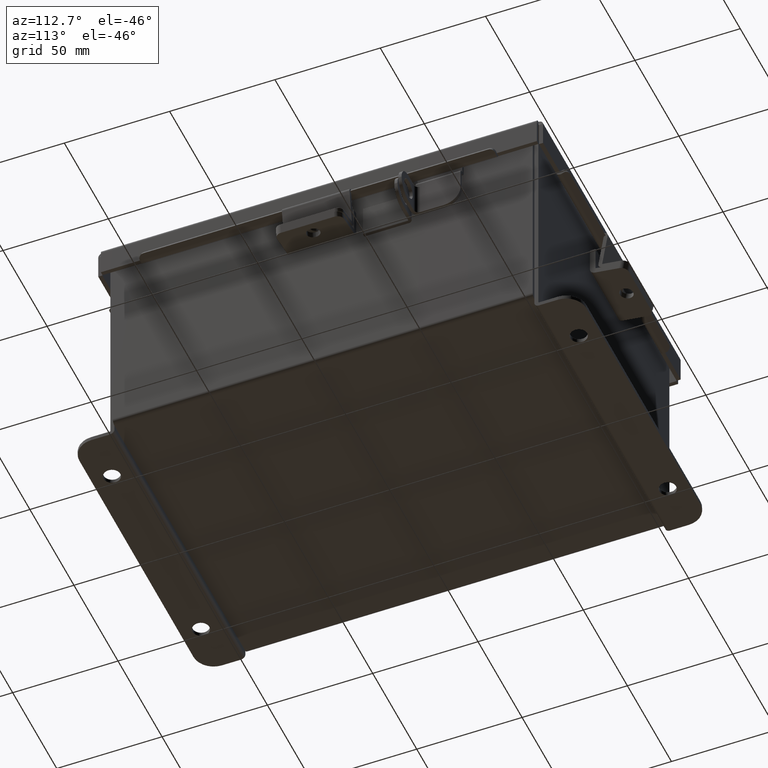
[diagram: clean part render]
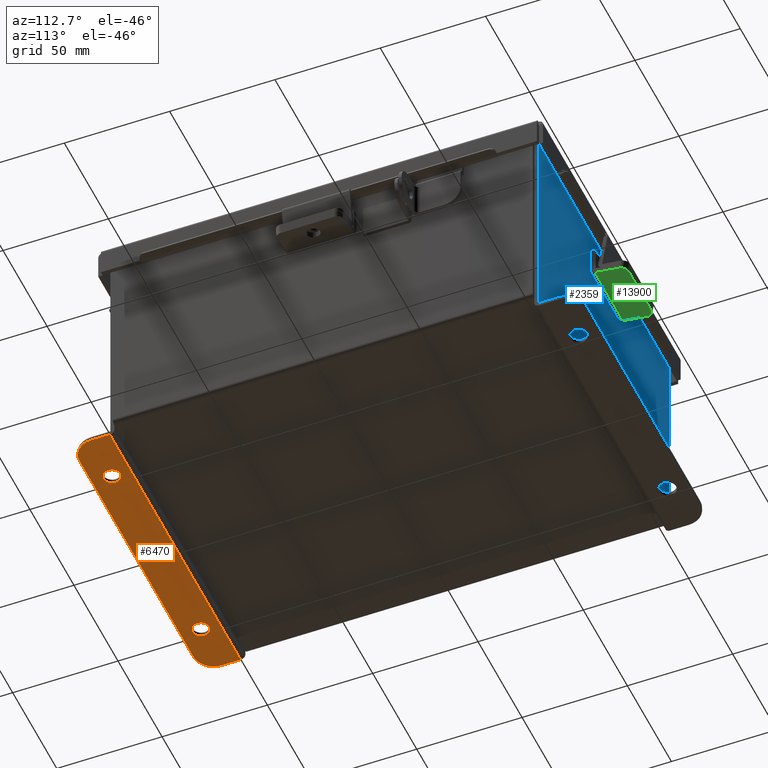
[diagram: same view with three faces highlighted in distinct colors, each labeled with its STEP entity id]
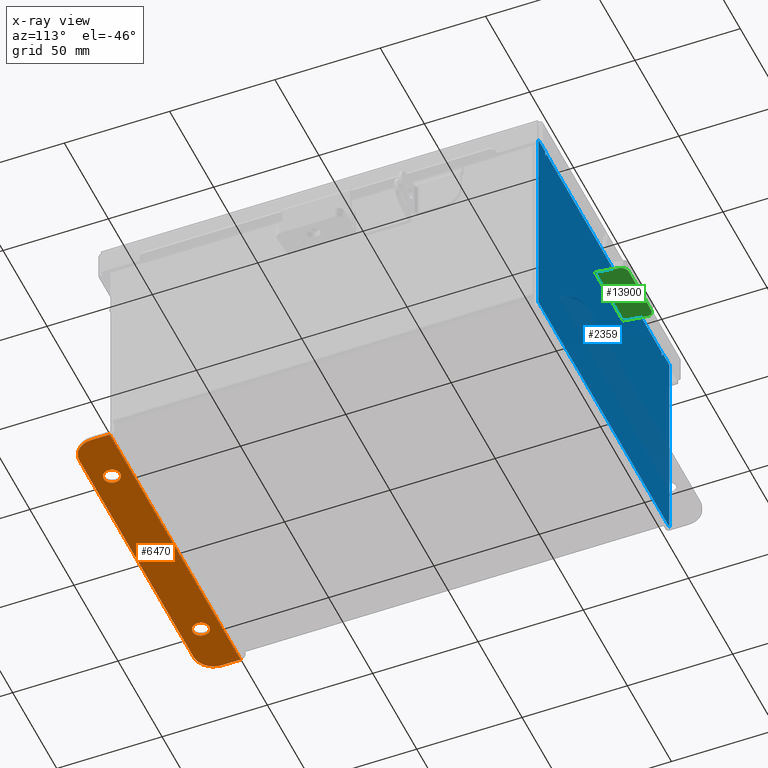
[diagram: x-ray of the same camera — body ghosted, the three highlighted faces saturated]
A machine part, auxiliary view with three faces highlighted in distinct colors.
The next image is the same camera in x-ray (body ghosted, the three faces saturated) — at least one of them is partly hidden behind the body in this view.
Their STEP definitions:

[orange] entity #6470 — the highlighted planar face has unit normal (0, -0, 1).
#15 = VERTEX_POINT ( 'NONE', #13434 ) ;
#88 = FACE_OUTER_BOUND ( 'NONE', #2452, .T. ) ;
#222 = DIRECTION ( 'NONE',  ( 3.994427860841574400E-031, 1.000000000000000000, -3.332425039709726500E-015 ) ) ;
#336 = ORIENTED_EDGE ( 'NONE', *, *, #5628, .T. ) ;
#584 = VERTEX_POINT ( 'NONE', #10050 ) ;
#651 = CIRCLE ( 'NONE', #1889, 0.3750000000000000600 ) ;
#751 = DIRECTION ( 'NONE',  ( 0.0000000000000000000, -3.362274453740631800E-015, -1.000000000000000000 ) ) ;
#816 = ORIENTED_EDGE ( 'NONE', *, *, #12604, .F. ) ;
#1041 = CARTESIAN_POINT ( 'NONE',  ( -2.925299999999996500, -6.556435184794231700E-015, -2.186999999999998900 ) ) ;
#1432 = CARTESIAN_POINT ( 'NONE',  ( 2.925300000000004000, 0.01300000000000393200, -2.186999999999998900 ) ) ;
#1616 = LINE ( 'NONE', #1041, #7528 ) ;
#1710 = DIRECTION ( 'NONE',  ( 0.0000000000000000000, -3.362274453740631800E-015, -1.000000000000000000 ) ) ;
#1760 = VERTEX_POINT ( 'NONE', #11799 ) ;
#1889 = AXIS2_PLACEMENT_3D ( 'NONE', #10932, #3807, #12134 ) ;
#1937 = ORIENTED_EDGE ( 'NONE', *, *, #5139, .T. ) ;
#2050 = CARTESIAN_POINT ( 'NONE',  ( 0.0000000000000000000, 0.7378000000000043400, -2.187000000000001600 ) ) ;
#2198 = CARTESIAN_POINT ( 'NONE',  ( 2.925300000000004000, -2.185478394931410600E-015, -2.186999999999998900 ) ) ;
#2246 = DIRECTION ( 'NONE',  ( -3.994427860841574400E-031, -1.000000000000000000, 3.332425039709726500E-015 ) ) ;
#2333 = CIRCLE ( 'NONE', #8039, 0.3750000000000000600 ) ;
#2452 = EDGE_LOOP ( 'NONE', ( #4488, #1937, #6517, #336, #7218, #816 ) ) ;
#2558 = CARTESIAN_POINT ( 'NONE',  ( -2.925299999999996500, 0.3628000000000002900, -2.187000000000000300 ) ) ;
#2651 = VERTEX_POINT ( 'NONE', #9995 ) ;
#2955 = CARTESIAN_POINT ( 'NONE',  ( -2.925299999999995600, 0.01300000000000065300, -2.186999999999998900 ) ) ;
#3237 = DIRECTION ( 'NONE',  ( 1.000000000000000000, 4.910036603141682400E-031, 0.0000000000000000000 ) ) ;
#3435 = EDGE_CURVE ( 'NONE', #5830, #4857, #1616, .T. ) ;
#3807 = DIRECTION ( 'NONE',  ( -0.0000000000000000000, -3.332425039709726500E-015, -1.000000000000000000 ) ) ;
#4251 = DIRECTION ( 'NONE',  ( -0.0000000000000000000, -3.332425039709726500E-015, -1.000000000000000000 ) ) ;
#4398 = EDGE_CURVE ( 'NONE', #2651, #10884, #14421, .T. ) ;
#4488 = ORIENTED_EDGE ( 'NONE', *, *, #3435, .T. ) ;
#4528 = VERTEX_POINT ( 'NONE', #12915 ) ;
#4546 = ORIENTED_EDGE ( 'NONE', *, *, #4398, .F. ) ;
#4857 = VERTEX_POINT ( 'NONE', #2558 ) ;
#4929 = AXIS2_PLACEMENT_3D ( 'NONE', #12796, #13994, #6853 ) ;
#4945 = ORIENTED_EDGE ( 'NONE', *, *, #9046, .F. ) ;
#5139 = EDGE_CURVE ( 'NONE', #4857, #4528, #2333, .T. ) ;
#5155 = EDGE_CURVE ( 'NONE', #15, #584, #14575, .T. ) ;
#5482 = CIRCLE ( 'NONE', #7900, 0.1560000000000001900 ) ;
#5628 = EDGE_CURVE ( 'NONE', #12207, #1760, #651, .T. ) ;
#5745 = CARTESIAN_POINT ( 'NONE',  ( 2.925300000000004000, 0.01300000000000502500, -2.186999999999998900 ) ) ;
#5830 = VERTEX_POINT ( 'NONE', #2955 ) ;
#6004 = FACE_BOUND ( 'NONE', #6626, .T. ) ;
#6141 = CARTESIAN_POINT ( 'NONE',  ( -1.987800000000000000, 0.3628000000000002900, -2.186999999999999800 ) ) ;
#6470 = ADVANCED_FACE ( 'NONE', ( #9181, #6004, #88 ), #11589, .F. ) ;
#6484 = VECTOR ( 'NONE', #2246, 39.37007874015748100 ) ;
#6517 = ORIENTED_EDGE ( 'NONE', *, *, #9402, .T. ) ;
#6626 = EDGE_LOOP ( 'NONE', ( #12890, #4945 ) ) ;
#6853 = DIRECTION ( 'NONE',  ( -3.994427860841588400E-031, -1.000000000000000000, 3.332425039709726500E-015 ) ) ;
#6897 = VECTOR ( 'NONE', #15250, 39.37007874015748100 ) ;
#7218 = ORIENTED_EDGE ( 'NONE', *, *, #8724, .T. ) ;
#7261 = LINE ( 'NONE', #5745, #6897 ) ;
#7303 = AXIS2_PLACEMENT_3D ( 'NONE', #14053, #8520, #9479 ) ;
#7324 = DIRECTION ( 'NONE',  ( 0.0000000000000000000, 1.000000000000000000, -3.502369222646487000E-015 ) ) ;
#7388 = LINE ( 'NONE', #2050, #12996 ) ;
#7528 = VECTOR ( 'NONE', #222, 39.37007874015748100 ) ;
#7835 = CARTESIAN_POINT ( 'NONE',  ( 1.987799999999999100, 0.3628000000000041200, -2.187000000000000300 ) ) ;
#7900 = AXIS2_PLACEMENT_3D ( 'NONE', #6141, #14465, #7324 ) ;
#8039 = AXIS2_PLACEMENT_3D ( 'NONE', #11356, #4251, #12573 ) ;
#8233 = CARTESIAN_POINT ( 'NONE',  ( 2.550300000000003600, 0.7378000000000043400, -2.187000000000001600 ) ) ;
#8520 = DIRECTION ( 'NONE',  ( 0.0000000000000000000, -3.362274453740631800E-015, -1.000000000000000000 ) ) ;
#8627 = EDGE_LOOP ( 'NONE', ( #4546, #10828 ) ) ;
#8724 = EDGE_CURVE ( 'NONE', #1760, #12853, #12835, .T. ) ;
#8807 = CARTESIAN_POINT ( 'NONE',  ( 1.987799999999999100, 0.3628000000000041200, -2.187000000000000300 ) ) ;
#9046 = EDGE_CURVE ( 'NONE', #584, #15, #11111, .T. ) ;
#9054 = DIRECTION ( 'NONE',  ( 0.0000000000000000000, 1.000000000000000000, -3.502369222646487000E-015 ) ) ;
#9181 = FACE_BOUND ( 'NONE', #8627, .T. ) ;
#9402 = EDGE_CURVE ( 'NONE', #4528, #12207, #7388, .T. ) ;
#9479 = DIRECTION ( 'NONE',  ( 0.0000000000000000000, 1.000000000000000000, -3.502369222646487000E-015 ) ) ;
#9995 = CARTESIAN_POINT ( 'NONE',  ( -1.987800000000000000, 0.5188000000000004800, -2.187000000000000300 ) ) ;
#10007 = DIRECTION ( 'NONE',  ( 0.0000000000000000000, 1.000000000000000000, -3.502369222646487000E-015 ) ) ;
#10050 = CARTESIAN_POINT ( 'NONE',  ( 1.987799999999997100, 0.2068000000000039500, -2.186999999999999800 ) ) ;
#10223 = EDGE_CURVE ( 'NONE', #10884, #2651, #5482, .T. ) ;
#10828 = ORIENTED_EDGE ( 'NONE', *, *, #10223, .F. ) ;
#10884 = VERTEX_POINT ( 'NONE', #11242 ) ;
#10932 = CARTESIAN_POINT ( 'NONE',  ( 2.550300000000003600, 0.3628000000000041200, -2.187000000000000300 ) ) ;
#11111 = CIRCLE ( 'NONE', #13364, 0.1560000000000001900 ) ;
#11242 = CARTESIAN_POINT ( 'NONE',  ( -1.987800000000002200, 0.2068000000000001200, -2.186999999999999400 ) ) ;
#11356 = CARTESIAN_POINT ( 'NONE',  ( -2.550299999999995100, 0.3628000000000002900, -2.186999999999998100 ) ) ;
#11589 = PLANE ( 'NONE',  #4929 ) ;
#11799 = CARTESIAN_POINT ( 'NONE',  ( 2.925300000000004000, 0.3628000000000041200, -2.186999999999999800 ) ) ;
#12010 = AXIS2_PLACEMENT_3D ( 'NONE', #7835, #751, #9054 ) ;
#12134 = DIRECTION ( 'NONE',  ( 0.0000000000000000000, -1.000000000000000000, 3.642463991552350200E-015 ) ) ;
#12207 = VERTEX_POINT ( 'NONE', #8233 ) ;
#12573 = DIRECTION ( 'NONE',  ( 0.0000000000000000000, -1.000000000000000000, 3.642463991552350200E-015 ) ) ;
#12604 = EDGE_CURVE ( 'NONE', #5830, #12853, #7261, .T. ) ;
#12796 = CARTESIAN_POINT ( 'NONE',  ( 0.0000000000000000000, -2.731847993664263200E-015, -2.186999999999998900 ) ) ;
#12835 = LINE ( 'NONE', #2198, #6484 ) ;
#12853 = VERTEX_POINT ( 'NONE', #1432 ) ;
#12890 = ORIENTED_EDGE ( 'NONE', *, *, #5155, .F. ) ;
#12915 = CARTESIAN_POINT ( 'NONE',  ( -2.550299999999995100, 0.7378000000000000100, -2.186999999999999400 ) ) ;
#12996 = VECTOR ( 'NONE', #3237, 39.37007874015748100 ) ;
#13364 = AXIS2_PLACEMENT_3D ( 'NONE', #8807, #1710, #10007 ) ;
#13434 = CARTESIAN_POINT ( 'NONE',  ( 1.987799999999999100, 0.5188000000000042600, -2.187000000000000700 ) ) ;
#13994 = DIRECTION ( 'NONE',  ( -1.555753819465285400E-061, 3.332425039709726500E-015, 1.000000000000000000 ) ) ;
#14053 = CARTESIAN_POINT ( 'NONE',  ( -1.987800000000000000, 0.3628000000000002900, -2.186999999999999800 ) ) ;
#14421 = CIRCLE ( 'NONE', #7303, 0.1560000000000001900 ) ;
#14465 = DIRECTION ( 'NONE',  ( 0.0000000000000000000, -3.362274453740631800E-015, -1.000000000000000000 ) ) ;
#14575 = CIRCLE ( 'NONE', #12010, 0.1560000000000001900 ) ;
#15250 = DIRECTION ( 'NONE',  ( 1.000000000000000000, 4.910036603141682400E-031, -0.0000000000000000000 ) ) ;

[blue] entity #2359 — the highlighted planar face has unit normal (0, -1, 0).
#140 = LINE ( 'NONE', #4554, #497 ) ;
#497 = VECTOR ( 'NONE', #8236, 39.37007874015748100 ) ;
#698 = VECTOR ( 'NONE', #14564, 39.37007874015748100 ) ;
#721 = EDGE_CURVE ( 'NONE', #11660, #6461, #1444, .T. ) ;
#983 = DIRECTION ( 'NONE',  ( 0.0000000000000000000, -1.000000000000000000, 0.0000000000000000000 ) ) ;
#1076 = DIRECTION ( 'NONE',  ( 0.0000000000000000000, -0.0000000000000000000, -1.000000000000000000 ) ) ;
#1444 = LINE ( 'NONE', #9036, #1999 ) ;
#1460 = CARTESIAN_POINT ( 'NONE',  ( -2.619650000000000900, 0.0000000000000000000, 0.0000000000000000000 ) ) ;
#1480 = DIRECTION ( 'NONE',  ( -0.0000000000000000000, 1.000000000000000000, -0.0000000000000000000 ) ) ;
#1624 = VERTEX_POINT ( 'NONE', #12658 ) ;
#1652 = DIRECTION ( 'NONE',  ( -0.0000000000000000000, 1.000000000000000000, -0.0000000000000000000 ) ) ;
#1739 = ORIENTED_EDGE ( 'NONE', *, *, #7467, .F. ) ;
#1906 = EDGE_CURVE ( 'NONE', #5095, #10024, #2435, .T. ) ;
#1939 = VERTEX_POINT ( 'NONE', #3635 ) ;
#1989 = DIRECTION ( 'NONE',  ( 0.0000000000000000000, 0.0000000000000000000, -1.000000000000000000 ) ) ;
#1999 = VECTOR ( 'NONE', #5960, 39.37007874015748100 ) ;
#2005 = EDGE_CURVE ( 'NONE', #11660, #3938, #140, .T. ) ;
#2074 = VECTOR ( 'NONE', #11384, 39.37007874015748100 ) ;
#2110 = ORIENTED_EDGE ( 'NONE', *, *, #6190, .T. ) ;
#2270 = ORIENTED_EDGE ( 'NONE', *, *, #13516, .T. ) ;
#2359 = ADVANCED_FACE ( 'NONE', ( #5493 ), #11789, .F. ) ;
#2412 = AXIS2_PLACEMENT_3D ( 'NONE', #8746, #1652, #9952 ) ;
#2435 = LINE ( 'NONE', #7167, #11593 ) ;
#2791 = VECTOR ( 'NONE', #1989, 39.37007874015748100 ) ;
#2809 = ORIENTED_EDGE ( 'NONE', *, *, #13821, .F. ) ;
#3052 = ORIENTED_EDGE ( 'NONE', *, *, #2005, .T. ) ;
#3411 = LINE ( 'NONE', #14210, #9361 ) ;
#3569 = VERTEX_POINT ( 'NONE', #3611 ) ;
#3606 = LINE ( 'NONE', #11631, #6761 ) ;
#3611 = CARTESIAN_POINT ( 'NONE',  ( -2.619650000000000900, 0.0000000000000000000, 1.874950000000000100 ) ) ;
#3635 = CARTESIAN_POINT ( 'NONE',  ( -2.925300000000000500, -5.463695987328526400E-016, -2.099299999999999100 ) ) ;
#3825 = VERTEX_POINT ( 'NONE', #4394 ) ;
#3938 = VERTEX_POINT ( 'NONE', #9499 ) ;
#3942 = DIRECTION ( 'NONE',  ( 1.000000000000000000, 8.208677865577646300E-017, -0.0000000000000000000 ) ) ;
#3975 = EDGE_CURVE ( 'NONE', #1939, #5095, #4574, .T. ) ;
#3988 = DIRECTION ( 'NONE',  ( 1.000000000000000000, 0.0000000000000000000, 0.0000000000000000000 ) ) ;
#4256 = LINE ( 'NONE', #7430, #10229 ) ;
#4394 = CARTESIAN_POINT ( 'NONE',  ( 2.582299999999998700, 0.0000000000000000000, 1.912300000000000300 ) ) ;
#4512 = DIRECTION ( 'NONE',  ( 0.0000000000000000000, 0.0000000000000000000, 1.000000000000000000 ) ) ;
#4554 = CARTESIAN_POINT ( 'NONE',  ( -2.925300000000001300, 0.0000000000000000000, 1.925300000000000900 ) ) ;
#4574 = LINE ( 'NONE', #13594, #698 ) ;
#5095 = VERTEX_POINT ( 'NONE', #13620 ) ;
#5279 = EDGE_CURVE ( 'NONE', #13619, #3825, #3606, .T. ) ;
#5493 = FACE_OUTER_BOUND ( 'NONE', #14081, .T. ) ;
#5828 = ORIENTED_EDGE ( 'NONE', *, *, #5279, .F. ) ;
#5960 = DIRECTION ( 'NONE',  ( -1.085143195099989400E-014, 0.0000000000000000000, -1.000000000000000000 ) ) ;
#5964 = LINE ( 'NONE', #7866, #2074 ) ;
#6190 = EDGE_CURVE ( 'NONE', #6774, #3825, #3411, .T. ) ;
#6461 = VERTEX_POINT ( 'NONE', #12742 ) ;
#6704 = CIRCLE ( 'NONE', #2412, 0.01867500000000003900 ) ;
#6761 = VECTOR ( 'NONE', #4512, 39.37007874015748100 ) ;
#6774 = VERTEX_POINT ( 'NONE', #14581 ) ;
#7068 = DIRECTION ( 'NONE',  ( 1.000000000000000000, 0.0000000000000000000, 0.0000000000000000000 ) ) ;
#7114 = AXIS2_PLACEMENT_3D ( 'NONE', #8565, #1480, #9775 ) ;
#7167 = CARTESIAN_POINT ( 'NONE',  ( -2.925300000000001300, 0.0000000000000000000, 1.925300000000000900 ) ) ;
#7430 = CARTESIAN_POINT ( 'NONE',  ( -2.925300000000001300, -5.463695987328526400E-016, -2.099299999999999100 ) ) ;
#7467 = EDGE_CURVE ( 'NONE', #6461, #13619, #6704, .T. ) ;
#7866 = CARTESIAN_POINT ( 'NONE',  ( 2.925299999999999100, 0.0000000000000000000, 1.925300000000000900 ) ) ;
#7882 = VECTOR ( 'NONE', #12084, 39.37007874015748100 ) ;
#8081 = CARTESIAN_POINT ( 'NONE',  ( 2.582299999999998700, 0.0000000000000000000, 1.874950000000000100 ) ) ;
#8206 = VERTEX_POINT ( 'NONE', #8372 ) ;
#8236 = DIRECTION ( 'NONE',  ( 1.000000000000000000, 0.0000000000000000000, 0.0000000000000000000 ) ) ;
#8372 = CARTESIAN_POINT ( 'NONE',  ( -2.582300000000000900, 0.0000000000000000000, 1.874950000000000100 ) ) ;
#8565 = CARTESIAN_POINT ( 'NONE',  ( -2.600975000000000900, 0.0000000000000000000, 1.874950000000000100 ) ) ;
#8746 = CARTESIAN_POINT ( 'NONE',  ( 2.600974999999998700, 0.0000000000000000000, 1.874950000000000100 ) ) ;
#8760 = ORIENTED_EDGE ( 'NONE', *, *, #14772, .F. ) ;
#8971 = ORIENTED_EDGE ( 'NONE', *, *, #721, .F. ) ;
#9036 = CARTESIAN_POINT ( 'NONE',  ( 2.619649999999978700, 0.0000000000000000000, -2.841121913410833900E-014 ) ) ;
#9361 = VECTOR ( 'NONE', #7068, 39.37007874015748100 ) ;
#9499 = CARTESIAN_POINT ( 'NONE',  ( 2.925299999999999100, 0.0000000000000000000, 1.925300000000000900 ) ) ;
#9775 = DIRECTION ( 'NONE',  ( 0.0000000000000000000, 0.0000000000000000000, -1.000000000000000000 ) ) ;
#9952 = DIRECTION ( 'NONE',  ( 0.0000000000000000000, 0.0000000000000000000, -1.000000000000000000 ) ) ;
#10024 = VERTEX_POINT ( 'NONE', #13863 ) ;
#10202 = AXIS2_PLACEMENT_3D ( 'NONE', #12744, #983, #1076 ) ;
#10229 = VECTOR ( 'NONE', #3942, 39.37007874015748100 ) ;
#10291 = CARTESIAN_POINT ( 'NONE',  ( -2.582300000000000900, 0.0000000000000000000, 0.0000000000000000000 ) ) ;
#10647 = ORIENTED_EDGE ( 'NONE', *, *, #11920, .F. ) ;
#10696 = EDGE_CURVE ( 'NONE', #3569, #10024, #14213, .T. ) ;
#11384 = DIRECTION ( 'NONE',  ( 0.0000000000000000000, 0.0000000000000000000, -1.000000000000000000 ) ) ;
#11397 = ORIENTED_EDGE ( 'NONE', *, *, #10696, .F. ) ;
#11593 = VECTOR ( 'NONE', #3988, 39.37007874015748100 ) ;
#11631 = CARTESIAN_POINT ( 'NONE',  ( 2.582299999999998700, 0.0000000000000000000, 0.0000000000000000000 ) ) ;
#11660 = VERTEX_POINT ( 'NONE', #11700 ) ;
#11700 = CARTESIAN_POINT ( 'NONE',  ( 2.619649999999999100, 0.0000000000000000000, 1.925300000000000900 ) ) ;
#11789 = PLANE ( 'NONE',  #10202 ) ;
#11892 = LINE ( 'NONE', #10291, #2791 ) ;
#11920 = EDGE_CURVE ( 'NONE', #8206, #3569, #12690, .T. ) ;
#12084 = DIRECTION ( 'NONE',  ( 0.0000000000000000000, 0.0000000000000000000, 1.000000000000000000 ) ) ;
#12658 = CARTESIAN_POINT ( 'NONE',  ( 2.925299999999999100, 0.0000000000000000000, -2.099299999999999100 ) ) ;
#12690 = CIRCLE ( 'NONE', #7114, 0.01867500000000003900 ) ;
#12742 = CARTESIAN_POINT ( 'NONE',  ( 2.619649999999999100, 0.0000000000000000000, 1.874950000000000100 ) ) ;
#12744 = CARTESIAN_POINT ( 'NONE',  ( 0.0000000000000000000, 0.0000000000000000000, 0.0000000000000000000 ) ) ;
#13516 = EDGE_CURVE ( 'NONE', #3938, #1624, #5964, .T. ) ;
#13594 = CARTESIAN_POINT ( 'NONE',  ( -2.925300000000001300, 0.0000000000000000000, 1.925300000000000900 ) ) ;
#13619 = VERTEX_POINT ( 'NONE', #8081 ) ;
#13620 = CARTESIAN_POINT ( 'NONE',  ( -2.925300000000001300, 0.0000000000000000000, 1.925300000000000900 ) ) ;
#13821 = EDGE_CURVE ( 'NONE', #1939, #1624, #4256, .T. ) ;
#13863 = CARTESIAN_POINT ( 'NONE',  ( -2.619650000000000900, 0.0000000000000000000, 1.925300000000000900 ) ) ;
#14081 = EDGE_LOOP ( 'NONE', ( #11397, #10647, #8760, #2110, #5828, #1739, #8971, #3052, #2270, #2809, #14348, #15097 ) ) ;
#14210 = CARTESIAN_POINT ( 'NONE',  ( -2.582300000000000900, 1.092739197465705300E-015, 1.912300000000000300 ) ) ;
#14213 = LINE ( 'NONE', #1460, #7882 ) ;
#14348 = ORIENTED_EDGE ( 'NONE', *, *, #3975, .T. ) ;
#14564 = DIRECTION ( 'NONE',  ( -0.0000000000000000000, -0.0000000000000000000, 1.000000000000000000 ) ) ;
#14581 = CARTESIAN_POINT ( 'NONE',  ( -2.582300000000000900, 1.092739197465705300E-015, 1.912300000000000300 ) ) ;
#14772 = EDGE_CURVE ( 'NONE', #6774, #8206, #11892, .T. ) ;
#15097 = ORIENTED_EDGE ( 'NONE', *, *, #1906, .T. ) ;

[green] entity #13900 — the highlighted planar face has unit normal (0, 0.1564, 0.9877).
#268 = CARTESIAN_POINT ( 'NONE',  ( 0.6249999999999997800, -0.3825291922937684200, 0.5715788249670738000 ) ) ;
#385 = FACE_OUTER_BOUND ( 'NONE', #3779, .T. ) ;
#465 = AXIS2_PLACEMENT_3D ( 'NONE', #10657, #3533, #11846 ) ;
#530 = ORIENTED_EDGE ( 'NONE', *, *, #3518, .T. ) ;
#547 = ORIENTED_EDGE ( 'NONE', *, *, #11670, .F. ) ;
#767 = LINE ( 'NONE', #4032, #13027 ) ;
#812 = AXIS2_PLACEMENT_3D ( 'NONE', #13582, #6450, #14774 ) ;
#892 = VECTOR ( 'NONE', #7753, 39.37007874015748100 ) ;
#998 = AXIS2_PLACEMENT_3D ( 'NONE', #10864, #1040, #14405 ) ;
#1040 = DIRECTION ( 'NONE',  ( 0.0000000000000000000, -0.9876883405951371000, -0.1564344650402347500 ) ) ;
#1086 = CARTESIAN_POINT ( 'NONE',  ( 0.0000000000000000000, -0.3424819692434683000, 0.3187306097747185700 ) ) ;
#1097 = CARTESIAN_POINT ( 'NONE',  ( -0.5000000000000002200, -0.3825291922937684200, 0.5715788249670738000 ) ) ;
#1104 = VECTOR ( 'NONE', #6295, 39.37007874015748100 ) ;
#1124 = DIRECTION ( 'NONE',  ( 0.0000000000000000000, -0.1564344650402350000, 0.9876883405951369900 ) ) ;
#1180 = CARTESIAN_POINT ( 'NONE',  ( 0.6249999999999997800, -0.2906256832361269700, -0.008677094549546618100 ) ) ;
#1627 = ORIENTED_EDGE ( 'NONE', *, *, #6540, .T. ) ;
#1651 = VERTEX_POINT ( 'NONE', #10296 ) ;
#2008 = ORIENTED_EDGE ( 'NONE', *, *, #8436, .T. ) ;
#2017 = CARTESIAN_POINT ( 'NONE',  ( -0.6250000000000003300, -0.2906256832361269700, -0.008677094549546533100 ) ) ;
#2225 = CARTESIAN_POINT ( 'NONE',  ( 0.4999999999999997200, -0.3825291922937684200, 0.5715788249670738000 ) ) ;
#2266 = DIRECTION ( 'NONE',  ( 0.0000000000000000000, -0.1564344650402344800, 0.9876883405951372200 ) ) ;
#2916 = EDGE_CURVE ( 'NONE', #4614, #10056, #8154, .T. ) ;
#3518 = EDGE_CURVE ( 'NONE', #11741, #7964, #13488, .T. ) ;
#3533 = DIRECTION ( 'NONE',  ( 0.0000000000000000000, -0.9876883405951371000, -0.1564344650402347500 ) ) ;
#3779 = EDGE_LOOP ( 'NONE', ( #7171, #1627, #2008, #4914, #530, #6038 ) ) ;
#3821 = VERTEX_POINT ( 'NONE', #5697 ) ;
#4032 = CARTESIAN_POINT ( 'NONE',  ( -0.6250000000000003300, -0.3825291922937684200, 0.5715788249670738000 ) ) ;
#4141 = VECTOR ( 'NONE', #9384, 39.37007874015748100 ) ;
#4350 = EDGE_CURVE ( 'NONE', #1651, #3821, #11634, .T. ) ;
#4614 = VERTEX_POINT ( 'NONE', #2225 ) ;
#4810 = CIRCLE ( 'NONE', #465, 0.1250000000000000300 ) ;
#4914 = ORIENTED_EDGE ( 'NONE', *, *, #6136, .F. ) ;
#5640 = CIRCLE ( 'NONE', #9741, 0.1250000000000000300 ) ;
#5697 = CARTESIAN_POINT ( 'NONE',  ( 0.0000000000000000000, -0.3620362773734976400, 0.4421916523491106800 ) ) ;
#6038 = ORIENTED_EDGE ( 'NONE', *, *, #14343, .T. ) ;
#6136 = EDGE_CURVE ( 'NONE', #11741, #7599, #10108, .T. ) ;
#6295 = DIRECTION ( 'NONE',  ( -1.000000000000000000, 0.0000000000000000000, 0.0000000000000000000 ) ) ;
#6450 = DIRECTION ( 'NONE',  ( -0.0000000000000000000, 0.9876883405951371000, 0.1564344650402347500 ) ) ;
#6540 = EDGE_CURVE ( 'NONE', #10056, #8571, #5640, .T. ) ;
#6929 = CARTESIAN_POINT ( 'NONE',  ( -0.6250000000000003300, -0.3825291922937684200, 0.5715788249670738000 ) ) ;
#7171 = ORIENTED_EDGE ( 'NONE', *, *, #2916, .T. ) ;
#7199 = EDGE_LOOP ( 'NONE', ( #547, #14270 ) ) ;
#7599 = VERTEX_POINT ( 'NONE', #2017 ) ;
#7753 = DIRECTION ( 'NONE',  ( 0.0000000000000000000, -0.1564344650402347500, 0.9876883405951371000 ) ) ;
#7964 = VERTEX_POINT ( 'NONE', #11592 ) ;
#8154 = LINE ( 'NONE', #6929, #1104 ) ;
#8178 = CARTESIAN_POINT ( 'NONE',  ( -0.6250000000000003300, -0.2906256832361269700, -0.008677094549546522700 ) ) ;
#8203 = DIRECTION ( 'NONE',  ( 0.0000000000000000000, -0.9876883405951371000, -0.1564344650402347500 ) ) ;
#8436 = EDGE_CURVE ( 'NONE', #8571, #7599, #767, .T. ) ;
#8571 = VERTEX_POINT ( 'NONE', #13819 ) ;
#8827 = DIRECTION ( 'NONE',  ( 0.0000000000000000000, 0.1564344650402347500, -0.9876883405951371000 ) ) ;
#9372 = DIRECTION ( 'NONE',  ( 0.0000000000000000000, -0.9876883405951371000, -0.1564344650402347500 ) ) ;
#9384 = DIRECTION ( 'NONE',  ( -1.000000000000000000, -1.333134263018087700E-017, 8.417078472395434900E-017 ) ) ;
#9478 = FACE_BOUND ( 'NONE', #7199, .T. ) ;
#9741 = AXIS2_PLACEMENT_3D ( 'NONE', #15335, #8203, #1124 ) ;
#10056 = VERTEX_POINT ( 'NONE', #1097 ) ;
#10108 = LINE ( 'NONE', #8178, #4141 ) ;
#10296 = CARTESIAN_POINT ( 'NONE',  ( 1.530808498934191800E-017, -0.3229276611134389000, 0.1952695672003264000 ) ) ;
#10657 = CARTESIAN_POINT ( 'NONE',  ( 0.4999999999999997200, -0.3629748841637390800, 0.4481177823926816800 ) ) ;
#10864 = CARTESIAN_POINT ( 'NONE',  ( 0.0000000000000000000, -0.3424819692434683000, 0.3187306097747185700 ) ) ;
#11592 = CARTESIAN_POINT ( 'NONE',  ( 0.6249999999999997800, -0.3629748841637390800, 0.4481177823926816800 ) ) ;
#11634 = CIRCLE ( 'NONE', #998, 0.1250000000000000000 ) ;
#11670 = EDGE_CURVE ( 'NONE', #3821, #1651, #12129, .T. ) ;
#11741 = VERTEX_POINT ( 'NONE', #1180 ) ;
#11846 = DIRECTION ( 'NONE',  ( 0.0000000000000000000, -0.1564344650402350000, 0.9876883405951369900 ) ) ;
#12129 = CIRCLE ( 'NONE', #13028, 0.1250000000000000000 ) ;
#13027 = VECTOR ( 'NONE', #8827, 39.37007874015748100 ) ;
#13028 = AXIS2_PLACEMENT_3D ( 'NONE', #1086, #9372, #2266 ) ;
#13488 = LINE ( 'NONE', #268, #892 ) ;
#13582 = CARTESIAN_POINT ( 'NONE',  ( -0.6250000000000003300, -0.3825291922937684200, 0.5715788249670738000 ) ) ;
#13819 = CARTESIAN_POINT ( 'NONE',  ( -0.6250000000000003300, -0.3629748841637390800, 0.4481177823926816800 ) ) ;
#13900 = ADVANCED_FACE ( 'NONE', ( #9478, #385 ), #14718, .F. ) ;
#14270 = ORIENTED_EDGE ( 'NONE', *, *, #4350, .F. ) ;
#14343 = EDGE_CURVE ( 'NONE', #7964, #4614, #4810, .T. ) ;
#14405 = DIRECTION ( 'NONE',  ( 0.0000000000000000000, -0.1564344650402344800, 0.9876883405951372200 ) ) ;
#14718 = PLANE ( 'NONE',  #812 ) ;
#14774 = DIRECTION ( 'NONE',  ( 0.0000000000000000000, -0.1564344650402347500, 0.9876883405951371000 ) ) ;
#15335 = CARTESIAN_POINT ( 'NONE',  ( -0.5000000000000002200, -0.3629748841637390800, 0.4481177823926816800 ) ) ;